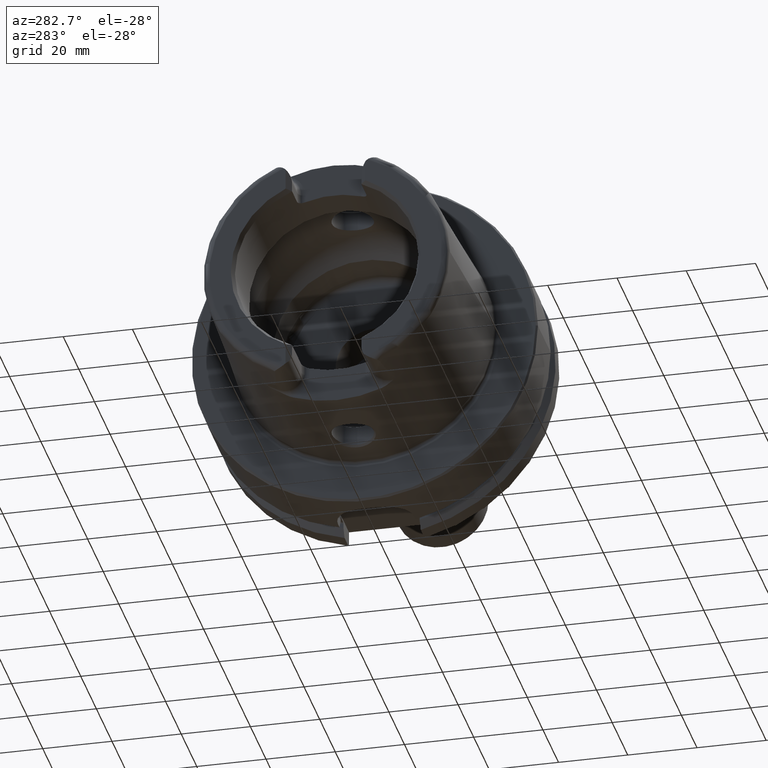
[diagram: clean part render]
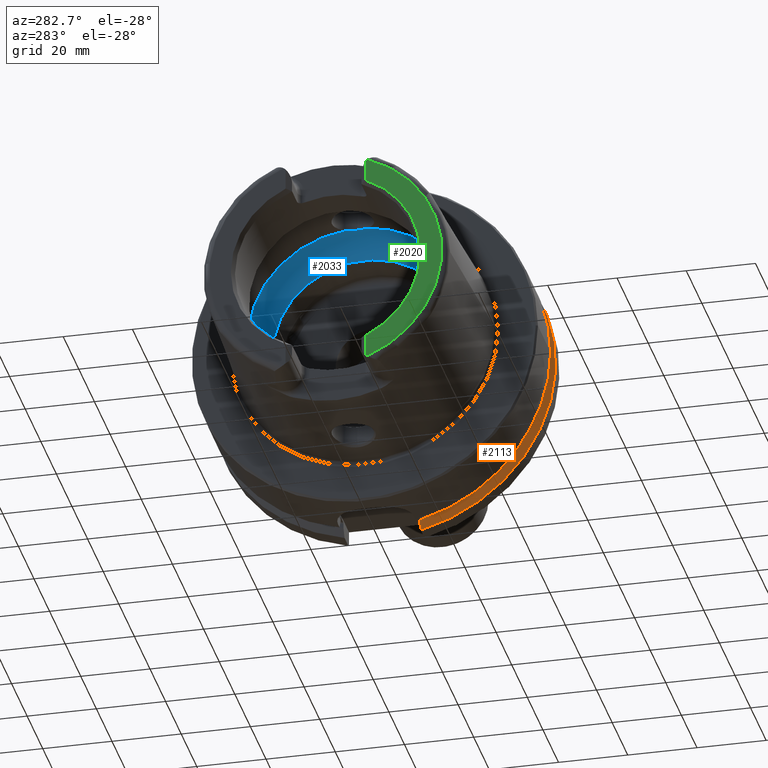
[diagram: same view with three faces highlighted in distinct colors, each labeled with its STEP entity id]
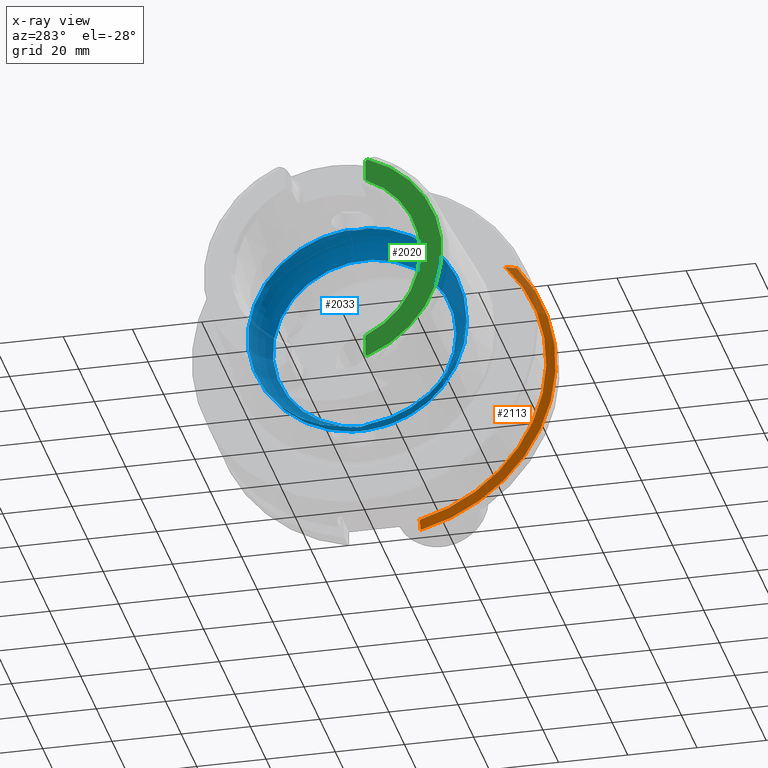
[diagram: x-ray of the same camera — body ghosted, the three highlighted faces saturated]
A machine part, auxiliary view with three faces highlighted in distinct colors.
The next image is the same camera in x-ray (body ghosted, the three faces saturated) — at least one of them is partly hidden behind the body in this view.
Their STEP definitions:

[orange] entity #2113 — the highlighted conical surface has half-angle 60 deg.
#20=(
BOUNDED_CURVE()
B_SPLINE_CURVE(2,(#4032,#4033,#4034),.UNSPECIFIED.,.F.,.F.)
B_SPLINE_CURVE_WITH_KNOTS((3,3),(0.,0.343884390880419),.UNSPECIFIED.)
CURVE()
GEOMETRIC_REPRESENTATION_ITEM()
RATIONAL_B_SPLINE_CURVE((1.,1.00052016257005,1.))
REPRESENTATION_ITEM('')
);
#25=(
BOUNDED_CURVE()
B_SPLINE_CURVE(2,(#4247,#4248,#4249),.UNSPECIFIED.,.F.,.F.)
B_SPLINE_CURVE_WITH_KNOTS((3,3),(0.,0.28292349080556),.UNSPECIFIED.)
CURVE()
GEOMETRIC_REPRESENTATION_ITEM()
RATIONAL_B_SPLINE_CURVE((1.,1.0003193410929,1.))
REPRESENTATION_ITEM('')
);
#329=FACE_OUTER_BOUND('',#464,.T.);
#464=EDGE_LOOP('',(#1961,#1962,#1963,#1964));
#758=CIRCLE('',#2290,50.);
#810=CIRCLE('',#2395,47.5975952641917);
#938=VERTEX_POINT('',#4029);
#939=VERTEX_POINT('',#4031);
#973=VERTEX_POINT('',#4244);
#974=VERTEX_POINT('',#4246);
#1184=EDGE_CURVE('',#939,#938,#20,.T.);
#1234=EDGE_CURVE('',#974,#973,#25,.T.);
#1250=EDGE_CURVE('',#939,#973,#758,.T.);
#1335=EDGE_CURVE('',#938,#974,#810,.T.);
#1961=ORIENTED_EDGE('',*,*,#1184,.T.);
#1962=ORIENTED_EDGE('',*,*,#1335,.T.);
#1963=ORIENTED_EDGE('',*,*,#1234,.T.);
#1964=ORIENTED_EDGE('',*,*,#1250,.F.);
#1994=CONICAL_SURFACE('',#2396,48.7987976320958,1.0471975511966);
#2113=ADVANCED_FACE('',(#329),#1994,.T.);
#2290=AXIS2_PLACEMENT_3D('',#4309,#2786,#2787);
#2395=AXIS2_PLACEMENT_3D('',#4553,#3020,#3021);
#2396=AXIS2_PLACEMENT_3D('',#4554,#3022,#3023);
#2786=DIRECTION('center_axis',(1.,0.,0.));
#2787=DIRECTION('ref_axis',(0.,0.,-1.));
#3020=DIRECTION('center_axis',(1.,0.,0.));
#3021=DIRECTION('ref_axis',(0.,0.,-1.));
#3022=DIRECTION('center_axis',(1.,0.,0.));
#3023=DIRECTION('ref_axis',(0.,-0.951449961441176,-0.307803461438603));
#4029=CARTESIAN_POINT('',(21.875,-35.6830642593065,31.5));
#4031=CARTESIAN_POINT('',(23.2620290209214,-38.8297566307078,31.5));
#4032=CARTESIAN_POINT('Ctrl Pts',(23.2620290209214,-38.8297566307078,31.5));
#4033=CARTESIAN_POINT('Ctrl Pts',(22.5392272442767,-37.2176818849707,31.5));
#4034=CARTESIAN_POINT('Ctrl Pts',(21.875,-35.6830642593065,31.5));
#4244=CARTESIAN_POINT('',(23.2620290209214,-11.,-48.7749935930288));
#4246=CARTESIAN_POINT('',(21.875,-11.,-46.3090819919138));
#4247=CARTESIAN_POINT('Ctrl Pts',(21.875,-11.,-46.3090819919138));
#4248=CARTESIAN_POINT('Ctrl Pts',(22.5505288964237,-11.,-47.5116880808802));
#4249=CARTESIAN_POINT('Ctrl Pts',(23.2620290209214,-11.,-48.7749935930288));
#4309=CARTESIAN_POINT('Origin',(23.2620290209214,0.,0.));
#4553=CARTESIAN_POINT('Origin',(21.875,0.,0.));
#4554=CARTESIAN_POINT('Origin',(22.5685145104607,0.,0.));

[blue] entity #2033 — the highlighted toroidal blend (fillet) surface has major radius 19.5 mm and minor (blend) radius 12 mm.
#48=B_SPLINE_CURVE_WITH_KNOTS('',3,(#3616,#3617,#3618,#3619,#3620,#3621,
#3622,#3623,#3624,#3625),.UNSPECIFIED.,.F.,.F.,(4,2,2,2,4),(-0.606113644645353,
-0.532141714710631,-0.407956541554012,-0.344441109025195,-0.303157612487306),
 .UNSPECIFIED.);
#50=B_SPLINE_CURVE_WITH_KNOTS('',3,(#3658,#3659,#3660,#3661,#3662,#3663,
#3664,#3665,#3666,#3667),.UNSPECIFIED.,.F.,.F.,(4,2,2,2,4),(-0.303157612487306,
-0.297161587155601,-0.247817233363509,-0.174446982686599,0.),
 .UNSPECIFIED.);
#53=B_SPLINE_CURVE_WITH_KNOTS('',3,(#3808,#3809,#3810,#3811,#3812,#3813,
#3814,#3815,#3816,#3817),.UNSPECIFIED.,.F.,.F.,(4,2,2,2,4),(-0.606113644645388,
-0.532141714710621,-0.407956541553997,-0.344441109025146,-0.303157612487227),
 .UNSPECIFIED.);
#55=B_SPLINE_CURVE_WITH_KNOTS('',3,(#3850,#3851,#3852,#3853,#3854,#3855,
#3856,#3857,#3858,#3859),.UNSPECIFIED.,.F.,.F.,(4,2,2,2,4),(-0.303157612487227,
-0.297161587155532,-0.247817233363497,-0.174446982686607,0.),
 .UNSPECIFIED.);
#142=TOROIDAL_SURFACE('',#2236,19.5,12.);
#249=FACE_OUTER_BOUND('',#379,.T.);
#379=EDGE_LOOP('',(#1540,#1541,#1542,#1543,#1544,#1545,#1546,#1547,#1548,
#1549,#1550));
#726=CIRCLE('',#2231,31.5);
#729=CIRCLE('',#2234,31.5);
#730=CIRCLE('',#2235,31.5);
#731=CIRCLE('',#2237,26.5);
#732=CIRCLE('',#2238,26.5);
#733=CIRCLE('',#2239,12.);
#902=VERTEX_POINT('',#3613);
#903=VERTEX_POINT('',#3615);
#904=VERTEX_POINT('',#3626);
#907=VERTEX_POINT('',#3806);
#908=VERTEX_POINT('',#3807);
#909=VERTEX_POINT('',#3818);
#910=VERTEX_POINT('',#3862);
#913=VERTEX_POINT('',#3872);
#914=VERTEX_POINT('',#3873);
#1137=EDGE_CURVE('',#903,#902,#48,.T.);
#1139=EDGE_CURVE('',#902,#904,#50,.T.);
#1143=EDGE_CURVE('',#907,#908,#53,.T.);
#1145=EDGE_CURVE('',#908,#909,#55,.T.);
#1147=EDGE_CURVE('',#910,#907,#726,.T.);
#1151=EDGE_CURVE('',#904,#910,#729,.T.);
#1152=EDGE_CURVE('',#909,#903,#730,.T.);
#1153=EDGE_CURVE('',#913,#914,#731,.T.);
#1154=EDGE_CURVE('',#914,#913,#732,.T.);
#1155=EDGE_CURVE('',#914,#902,#733,.T.);
#1540=ORIENTED_EDGE('',*,*,#1153,.F.);
#1541=ORIENTED_EDGE('',*,*,#1154,.F.);
#1542=ORIENTED_EDGE('',*,*,#1155,.T.);
#1543=ORIENTED_EDGE('',*,*,#1139,.T.);
#1544=ORIENTED_EDGE('',*,*,#1151,.T.);
#1545=ORIENTED_EDGE('',*,*,#1147,.T.);
#1546=ORIENTED_EDGE('',*,*,#1143,.T.);
#1547=ORIENTED_EDGE('',*,*,#1145,.T.);
#1548=ORIENTED_EDGE('',*,*,#1152,.T.);
#1549=ORIENTED_EDGE('',*,*,#1137,.T.);
#1550=ORIENTED_EDGE('',*,*,#1155,.F.);
#2033=ADVANCED_FACE('',(#249),#142,.F.);
#2231=AXIS2_PLACEMENT_3D('',#3863,#2629,#2630);
#2234=AXIS2_PLACEMENT_3D('',#3869,#2636,#2637);
#2235=AXIS2_PLACEMENT_3D('',#3870,#2638,#2639);
#2236=AXIS2_PLACEMENT_3D('',#3871,#2640,#2641);
#2237=AXIS2_PLACEMENT_3D('',#3874,#2642,#2643);
#2238=AXIS2_PLACEMENT_3D('',#3875,#2644,#2645);
#2239=AXIS2_PLACEMENT_3D('',#3876,#2646,#2647);
#2629=DIRECTION('center_axis',(-1.,0.,0.));
#2630=DIRECTION('ref_axis',(0.,0.,1.));
#2636=DIRECTION('center_axis',(-1.,0.,0.));
#2637=DIRECTION('ref_axis',(0.,0.,1.));
#2638=DIRECTION('center_axis',(-1.,0.,0.));
#2639=DIRECTION('ref_axis',(0.,0.,1.));
#2640=DIRECTION('center_axis',(-1.,0.,0.));
#2641=DIRECTION('ref_axis',(0.,0.,1.));
#2642=DIRECTION('center_axis',(-1.,0.,0.));
#2643=DIRECTION('ref_axis',(0.,0.,1.));
#2644=DIRECTION('center_axis',(-1.,0.,0.));
#2645=DIRECTION('ref_axis',(0.,0.,1.));
#2646=DIRECTION('center_axis',(0.,1.,-1.22464679914735E-16));
#2647=DIRECTION('ref_axis',(0.,-1.22464679914735E-16,-1.));
#3613=CARTESIAN_POINT('',(-9.,8.53116613017712E-16,-31.4767398822284));
#3615=CARTESIAN_POINT('',(-9.74679434480896,2.89893607109041,-31.3663222207471));
#3616=CARTESIAN_POINT('Ctrl Pts',(-9.74679434480898,2.89893607109041,-31.3663222207471));
#3617=CARTESIAN_POINT('Ctrl Pts',(-9.62803941549252,2.68373847757038,-31.3862111979079));
#3618=CARTESIAN_POINT('Ctrl Pts',(-9.52250794022164,2.46123932380009,-31.4027818190648));
#3619=CARTESIAN_POINT('Ctrl Pts',(-9.27707880675082,1.84905941644996,-31.4398086116956));
#3620=CARTESIAN_POINT('Ctrl Pts',(-9.16318715371328,1.45014848778478,-31.4552463037839));
#3621=CARTESIAN_POINT('Ctrl Pts',(-9.05448554629564,0.83406948853474,-31.4697090180031));
#3622=CARTESIAN_POINT('Ctrl Pts',(-9.02875508102837,0.623753972628784,-31.4730355369691));
#3623=CARTESIAN_POINT('Ctrl Pts',(-9.00473516300901,0.275210595137741,-31.4761342948647));
#3624=CARTESIAN_POINT('Ctrl Pts',(-9.,0.13762179988616,-31.4767398822284));
#3625=CARTESIAN_POINT('Ctrl Pts',(-9.,9.71445146547012E-16,-31.4767398822284));
#3626=CARTESIAN_POINT('',(-9.74679434480896,-2.89893607109041,-31.3663222207471));
#3658=CARTESIAN_POINT('Ctrl Pts',(-9.,9.83483832277069E-16,-31.4767398822284));
#3659=CARTESIAN_POINT('Ctrl Pts',(-9.,-0.0199882245331354,-31.4767398822284));
#3660=CARTESIAN_POINT('Ctrl Pts',(-9.00009988237686,-0.0399771452902417,
-31.4767270717783));
#3661=CARTESIAN_POINT('Ctrl Pts',(-9.00194380057016,-0.224464346212316,
-31.4764905359115));
#3662=CARTESIAN_POINT('Ctrl Pts',(-9.01035297969853,-0.388827878343727,
-31.4754151841588));
#3663=CARTESIAN_POINT('Ctrl Pts',(-9.0480310904853,-0.796171644009328,-31.4705320701686));
#3664=CARTESIAN_POINT('Ctrl Pts',(-9.08543037238412,-1.03809779370842,-31.4656619259797));
#3665=CARTESIAN_POINT('Ctrl Pts',(-9.26119500081336,-1.84501079512327,-31.441850680052));
#3666=CARTESIAN_POINT('Ctrl Pts',(-9.4667592962906,-2.39148034786879,-31.4132222586341));
#3667=CARTESIAN_POINT('Ctrl Pts',(-9.74679434480898,-2.89893607109041,-31.3663222207471));
#3806=CARTESIAN_POINT('',(-9.74679434480896,-2.89893607109042,31.3663222207471));
#3807=CARTESIAN_POINT('',(-8.99999999999999,7.8372767397864E-16,31.4767398822284));
#3808=CARTESIAN_POINT('Ctrl Pts',(-9.74679434480898,-2.89893607109042,31.3663222207471));
#3809=CARTESIAN_POINT('Ctrl Pts',(-9.62803941549257,-2.6837384775705,31.3862111979079));
#3810=CARTESIAN_POINT('Ctrl Pts',(-9.52250794022172,-2.46123932380032,31.4027818190648));
#3811=CARTESIAN_POINT('Ctrl Pts',(-9.27707880675083,-1.84905941645004,31.4398086116956));
#3812=CARTESIAN_POINT('Ctrl Pts',(-9.16318715371328,-1.45014848778485,31.4552463037839));
#3813=CARTESIAN_POINT('Ctrl Pts',(-9.05448554629561,-0.834069488534672,
31.4697090180031));
#3814=CARTESIAN_POINT('Ctrl Pts',(-9.02875508102836,-0.623753972628598,
31.4730355369691));
#3815=CARTESIAN_POINT('Ctrl Pts',(-9.00473516300902,-0.275210595137865,
31.4761342948647));
#3816=CARTESIAN_POINT('Ctrl Pts',(-8.99999999999999,-0.137621799886392,
31.4767398822284));
#3817=CARTESIAN_POINT('Ctrl Pts',(-8.99999999999999,9.0205620750794E-16,
31.4767398822284));
#3818=CARTESIAN_POINT('',(-9.74679434480896,2.89893607109042,31.3663222207471));
#3850=CARTESIAN_POINT('Ctrl Pts',(-8.99999999999999,8.7920239009422E-16,
31.4767398822284));
#3851=CARTESIAN_POINT('Ctrl Pts',(-8.99999999999999,0.0199882245331231,
31.4767398822284));
#3852=CARTESIAN_POINT('Ctrl Pts',(-9.00009988237684,0.0399771452902225,
31.4767270717783));
#3853=CARTESIAN_POINT('Ctrl Pts',(-9.00194380057014,0.224464346212396,31.4764905359115));
#3854=CARTESIAN_POINT('Ctrl Pts',(-9.01035297969852,0.388827878343765,31.4754151841588));
#3855=CARTESIAN_POINT('Ctrl Pts',(-9.0480310904853,0.79617164400948,31.4705320701686));
#3856=CARTESIAN_POINT('Ctrl Pts',(-9.08543037238414,1.03809779370849,31.4656619259797));
#3857=CARTESIAN_POINT('Ctrl Pts',(-9.26119500081334,1.84501079512323,31.441850680052));
#3858=CARTESIAN_POINT('Ctrl Pts',(-9.46675929629059,2.39148034786878,31.4132222586341));
#3859=CARTESIAN_POINT('Ctrl Pts',(-9.74679434480898,2.89893607109043,31.3663222207471));
#3862=CARTESIAN_POINT('',(-9.74679434480896,-31.5,3.85763741731416E-15));
#3863=CARTESIAN_POINT('Origin',(-9.74679434480896,0.,0.));
#3869=CARTESIAN_POINT('Origin',(-9.74679434480896,0.,0.));
#3870=CARTESIAN_POINT('Origin',(-9.74679434480896,0.,0.));
#3871=CARTESIAN_POINT('Origin',(-9.74679434480896,0.,0.));
#3872=CARTESIAN_POINT('',(0.,-26.5,3.24531401774049E-15));
#3873=CARTESIAN_POINT('',(0.,-3.24531401774049E-15,-26.5));
#3874=CARTESIAN_POINT('Origin',(0.,0.,0.));
#3875=CARTESIAN_POINT('Origin',(0.,0.,0.));
#3876=CARTESIAN_POINT('Origin',(-9.74679434480896,-2.38806125833734E-15,
-19.5));

[green] entity #2020 — the highlighted planar face has unit normal (-1, 0, 0).
#107=PLANE('',#2205);
#236=FACE_OUTER_BOUND('',#364,.T.);
#364=EDGE_LOOP('',(#1451,#1452,#1453,#1454,#1455,#1456));
#492=LINE('',#3204,#598);
#494=LINE('',#3223,#600);
#598=VECTOR('',#2548,10.);
#600=VECTOR('',#2570,10.);
#711=CIRCLE('',#2201,27.3660254037844);
#714=CIRCLE('',#2206,4.88);
#715=CIRCLE('',#2207,33.6001839277785);
#716=CIRCLE('',#2208,4.88);
#863=VERTEX_POINT('',#3201);
#864=VERTEX_POINT('',#3203);
#866=VERTEX_POINT('',#3209);
#869=VERTEX_POINT('',#3217);
#870=VERTEX_POINT('',#3219);
#871=VERTEX_POINT('',#3221);
#1085=EDGE_CURVE('',#863,#864,#492,.T.);
#1088=EDGE_CURVE('',#864,#866,#711,.T.);
#1092=EDGE_CURVE('',#863,#869,#714,.T.);
#1093=EDGE_CURVE('',#870,#869,#715,.T.);
#1094=EDGE_CURVE('',#870,#871,#716,.T.);
#1095=EDGE_CURVE('',#866,#871,#494,.T.);
#1451=ORIENTED_EDGE('',*,*,#1085,.F.);
#1452=ORIENTED_EDGE('',*,*,#1092,.T.);
#1453=ORIENTED_EDGE('',*,*,#1093,.F.);
#1454=ORIENTED_EDGE('',*,*,#1094,.T.);
#1455=ORIENTED_EDGE('',*,*,#1095,.F.);
#1456=ORIENTED_EDGE('',*,*,#1088,.F.);
#2020=ADVANCED_FACE('',(#236),#107,.T.);
#2201=AXIS2_PLACEMENT_3D('',#3210,#2554,#2555);
#2205=AXIS2_PLACEMENT_3D('',#3216,#2562,#2563);
#2206=AXIS2_PLACEMENT_3D('',#3218,#2564,#2565);
#2207=AXIS2_PLACEMENT_3D('',#3220,#2566,#2567);
#2208=AXIS2_PLACEMENT_3D('',#3222,#2568,#2569);
#2548=DIRECTION('',(0.,0.,1.));
#2554=DIRECTION('center_axis',(-1.,0.,0.));
#2555=DIRECTION('ref_axis',(0.,-1.,0.));
#2562=DIRECTION('center_axis',(-1.,0.,0.));
#2563=DIRECTION('ref_axis',(0.,0.,1.));
#2564=DIRECTION('center_axis',(-1.,0.,0.));
#2565=DIRECTION('ref_axis',(0.,-1.,0.));
#2566=DIRECTION('center_axis',(1.,0.,0.));
#2567=DIRECTION('ref_axis',(0.,0.,-1.));
#2568=DIRECTION('center_axis',(-1.,0.,0.));
#2569=DIRECTION('ref_axis',(0.,0.477884921181369,-0.878422450821629));
#2570=DIRECTION('',(0.,0.,1.));
#3201=CARTESIAN_POINT('',(-50.,-11.51,-30.8899431813596));
#3203=CARTESIAN_POINT('',(-50.,-11.51,-24.8277918148307));
#3204=CARTESIAN_POINT('',(-50.,-11.51,-13.685));
#3209=CARTESIAN_POINT('',(-50.,-11.51,24.8277918148307));
#3210=CARTESIAN_POINT('Origin',(-50.,0.,0.));
#3216=CARTESIAN_POINT('Origin',(-50.,33.6001839277785,0.));
#3217=CARTESIAN_POINT('',(-50.,-12.0743049948301,-31.355757348091));
#3218=CARTESIAN_POINT('Origin',(-50.,-14.89,-27.37));
#3219=CARTESIAN_POINT('',(-50.,-12.0743049948301,31.355757348091));
#3220=CARTESIAN_POINT('Origin',(-50.,0.,0.));
#3221=CARTESIAN_POINT('',(-50.,-11.51,30.8899431813596));
#3222=CARTESIAN_POINT('Origin',(-50.,-14.89,27.37));
#3223=CARTESIAN_POINT('',(-50.,-11.51,9.));